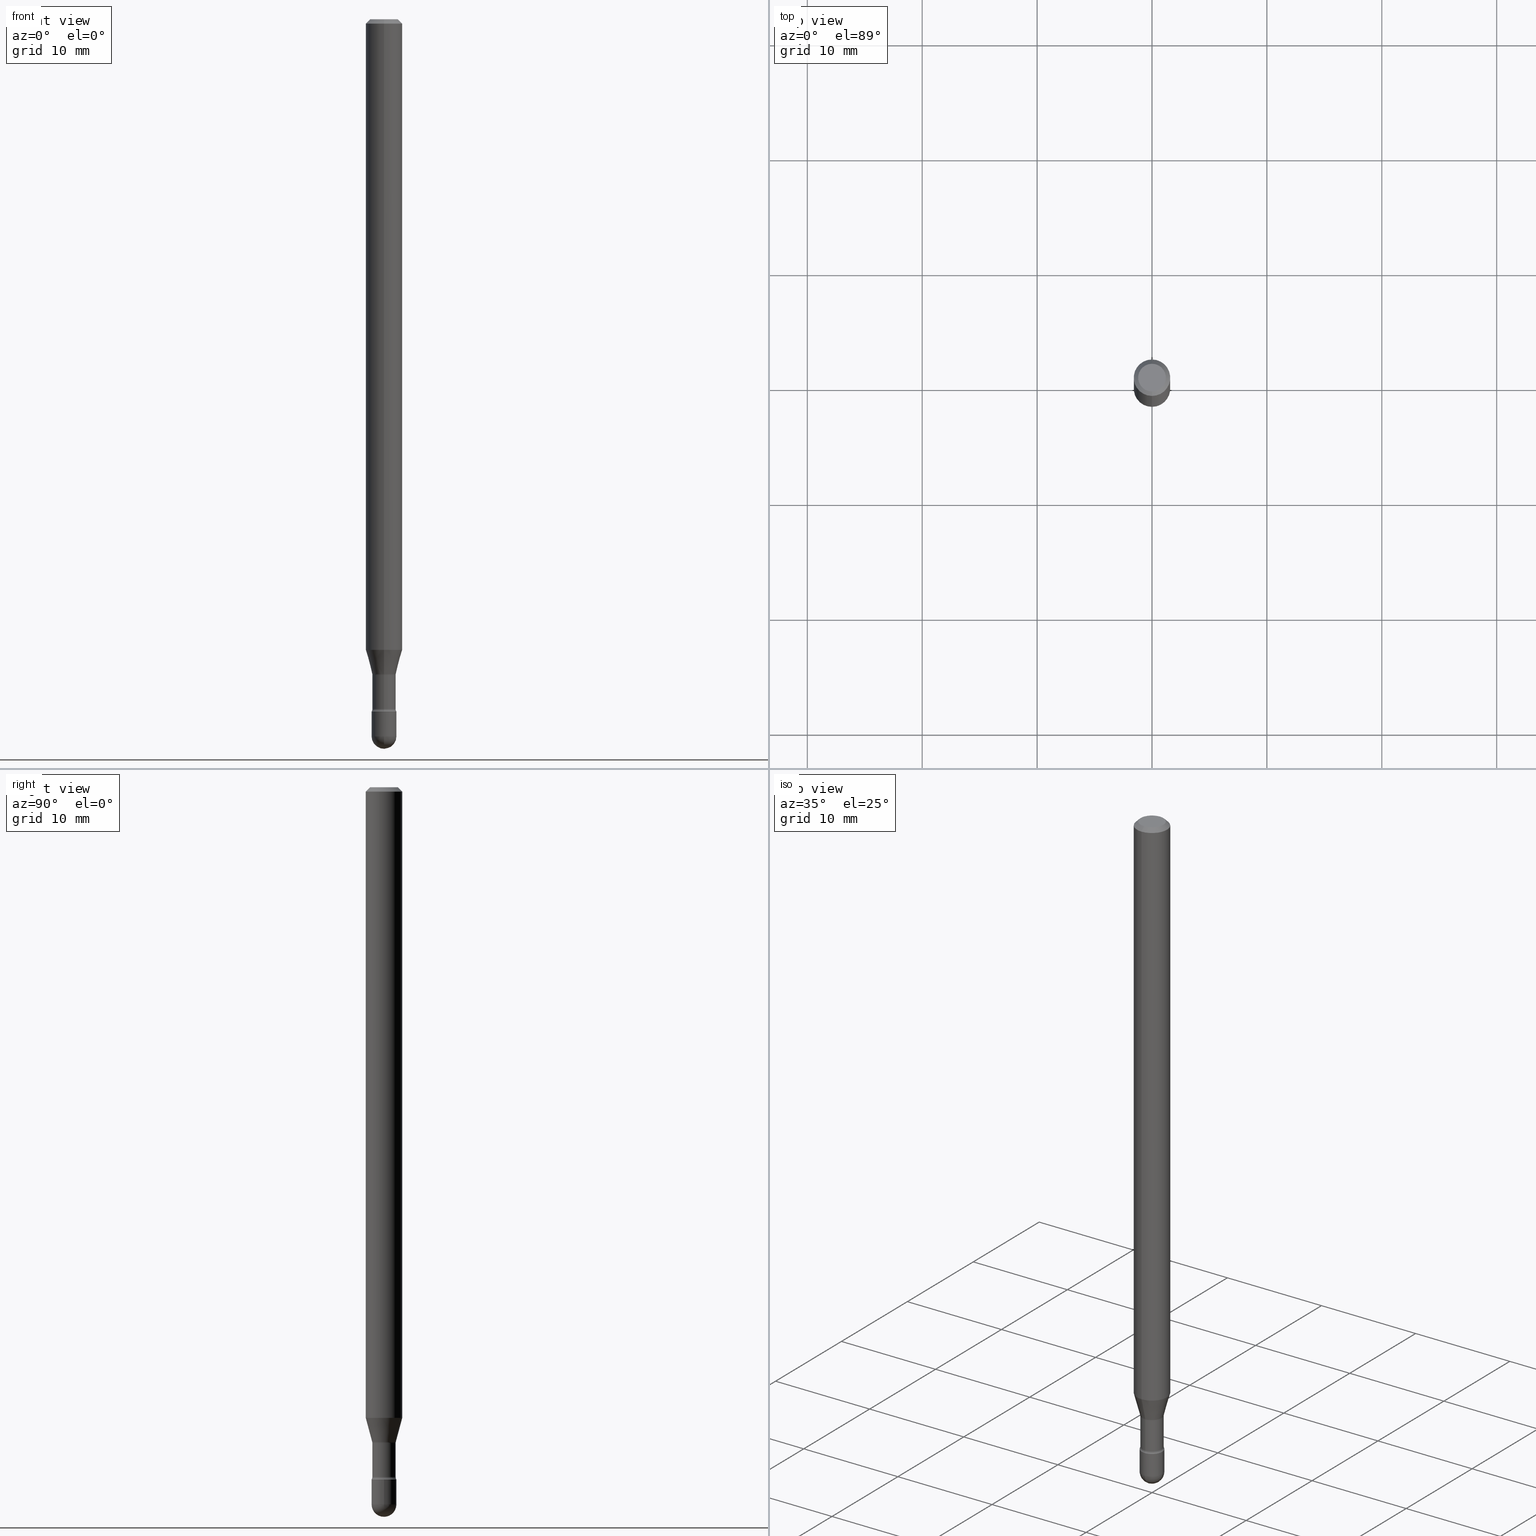
[diagram: canonical four-view strip — front | top / right | iso, engineering-drawing reading convention]
A machine part, canonical four-view strip (front | top / right | iso — engineering-drawing reading convention). The complete STEP part file that produces these views, byte-faithful:
ISO-10303-21;
HEADER;
FILE_DESCRIPTION (( 'STEP AP203' ),
    '1' );
FILE_NAME ('03824.STEP',
    '2024-04-09T20:37:17',
    ( '' ),
    ( '' ),
    'SwSTEP 2.0',
    'SolidWorks 2023',
    '' );
FILE_SCHEMA (( 'CONFIG_CONTROL_DESIGN' ));
ENDSEC;

DATA;
#1 = ORIENTED_EDGE ( 'NONE', *, *, #286, .F. ) ;
#2 = DIRECTION ( 'NONE',  ( -2.445507503827650270E-29, 3.491425921616532940E-15, 1.000000000000000000 ) ) ;
#3 = AXIS2_PLACEMENT_3D ( 'NONE', #433, #2, #337 ) ;
#4 = AXIS2_PLACEMENT_3D ( 'NONE', #171, #67, #457 ) ;
#5 = ORIENTED_EDGE ( 'NONE', *, *, #163, .T. ) ;
#6 = PRODUCT_RELATED_PRODUCT_CATEGORY ( 'detail', '', ( #428 ) ) ;
#7 = DATE_TIME_ROLE ( 'classification_date' ) ;
#8 = CARTESIAN_POINT ( 'NONE',  ( -4.364351673553916201E-16, -0.06250000000000000000, 6.962875189922793720E-16 ) ) ;
#9 = DIRECTION ( 'NONE',  ( -2.445507503827650270E-29, 3.491425921616532940E-15, 1.000000000000000000 ) ) ;
#10 = VERTEX_POINT ( 'NONE', #261 ) ;
#11 = APPROVAL_STATUS ( 'not_yet_approved' ) ;
#12 = LINE ( 'NONE', #175, #316 ) ;
#13 = ORIENTED_EDGE ( 'NONE', *, *, #65, .F. ) ;
#14 = DIRECTION ( 'NONE',  ( -2.445507503827650270E-29, 3.491425921616532940E-15, 1.000000000000000000 ) ) ;
#15 = AXIS2_PLACEMENT_3D ( 'NONE', #430, #225, #44 ) ;
#16 = CIRCLE ( 'NONE', #450, 0.04046111260566398471 ) ;
#17 = PERSON_AND_ORGANIZATION ( #242, #338 ) ;
#18 = FACE_OUTER_BOUND ( 'NONE', #432, .T. ) ;
#19 = APPROVAL_ROLE ( '' ) ;
#20 = UNCERTAINTY_MEASURE_WITH_UNIT (LENGTH_MEASURE( 1.000000000000000082E-05 ), #439, 'distance_accuracy_value', 'NONE');
#21 = ADVANCED_FACE ( 'NONE', ( #132 ), #179, .F. ) ;
#22 = APPROVAL_DATE_TIME ( #404, #149 ) ;
#23 = AXIS2_PLACEMENT_3D ( 'NONE', #93, #435, #499 ) ;
#24 = APPROVAL_PERSON_ORGANIZATION ( #342, #149, #131 ) ;
#25 = DIRECTION ( 'NONE',  ( 7.105427357601001859E-15, 1.000000000000000000, 0.000000000000000000 ) ) ;
#26 = CARTESIAN_POINT ( 'NONE',  ( -4.364351673553912750E-16, -0.06250000000000005551, -0.01499999999999986587 ) ) ;
#27 = DIRECTION ( 'NONE',  ( -6.982962677686266711E-15, -1.000000000000000000, 6.427877632151208176E-15 ) ) ;
#28 = EDGE_LOOP ( 'NONE', ( #295, #33, #244, #417 ) ) ;
#29 = CARTESIAN_POINT ( 'NONE',  ( 6.009739591199973545E-29, -8.580315390207031617E-15, -2.457500000000000018 ) ) ;
#30 = ORIENTED_EDGE ( 'NONE', *, *, #82, .T. ) ;
#31 = CIRCLE ( 'NONE', #455, 0.04046111260566398471 ) ;
#32 = VECTOR ( 'NONE', #9, 39.37007874015748143 ) ;
#33 = ORIENTED_EDGE ( 'NONE', *, *, #99, .T. ) ;
#34 = DIRECTION ( 'NONE',  ( -2.445507503827650270E-29, 3.491425921616532940E-15, 1.000000000000000000 ) ) ;
#35 = CYLINDRICAL_SURFACE ( 'NONE', #281, 0.04250000000000000999 ) ;
#36 = DIRECTION ( 'NONE',  ( -2.445507503827650270E-29, 3.491425921616532940E-15, 1.000000000000000000 ) ) ;
#37 = CARTESIAN_POINT ( 'NONE',  ( 3.668261255741495776E-31, -5.237138882424828228E-17, -0.01500000000000008271 ) ) ;
#38 = AXIS2_PLACEMENT_3D ( 'NONE', #267, #284, #279 ) ;
#39 = CIRCLE ( 'NONE', #349, 0.01499999999999998557 ) ;
#40 = LINE ( 'NONE', #391, #536 ) ;
#41 = EDGE_LOOP ( 'NONE', ( #467, #74, #155, #332 ) ) ;
#42 = CARTESIAN_POINT ( 'NONE',  ( 5.800652008271143730E-29, -8.281793735735941096E-15, -2.371999999999999886 ) ) ;
#43 = VERTEX_POINT ( 'NONE', #223 ) ;
#44 = DIRECTION ( 'NONE',  ( 6.982962677686265922E-15, 1.000000000000000000, -3.491425921616532940E-15 ) ) ;
#45 = CARTESIAN_POINT ( 'NONE',  ( 6.009739591199973545E-29, -8.580315390207031617E-15, -2.457500000000000018 ) ) ;
#46 = CC_DESIGN_DATE_AND_TIME_ASSIGNMENT ( #383, #7, ( #52 ) ) ;
#47 = ORIENTED_EDGE ( 'NONE', *, *, #319, .T. ) ;
#48 = DIRECTION ( 'NONE',  ( -2.445507503827649990E-29, 3.491425921616532940E-15, 1.000000000000000000 ) ) ;
#49 = LINE ( 'NONE', #8, #275 ) ;
#50 = CONICAL_SURFACE ( 'NONE', #520, 0.04046111260566398471, 0.2617993877991500740 ) ;
#51 = PRODUCT_DEFINITION_FORMATION_WITH_SPECIFIED_SOURCE ( 'ANY', '', #428, .NOT_KNOWN. ) ;
#52 = SECURITY_CLASSIFICATION ( '', '', #170 ) ;
#53 = ORIENTED_EDGE ( 'NONE', *, *, #99, .F. ) ;
#54 = DIRECTION ( 'NONE',  ( 1.000000000000000000, 0.000000000000000000, 0.000000000000000000 ) ) ;
#55 = ORIENTED_EDGE ( 'NONE', *, *, #451, .T. ) ;
#56 = PERSON_AND_ORGANIZATION ( #242, #338 ) ;
#57 = ORIENTED_EDGE ( 'NONE', *, *, #355, .T. ) ;
#58 = ADVANCED_FACE ( 'NONE', ( #445 ), #497, .F. ) ;
#59 = ORIENTED_EDGE ( 'NONE', *, *, #431, .F. ) ;
#60 = CIRCLE ( 'NONE', #112, 0.04249999999999999611 ) ;
#61 = PERSON_AND_ORGANIZATION_ROLE ( 'design_supplier' ) ;
#62 = PERSON_AND_ORGANIZATION ( #242, #338 ) ;
#63 = CARTESIAN_POINT ( 'NONE',  ( 2.023834255179844139E-45, -2.888878297537653118E-31, -8.274966438980944591E-17 ) ) ;
#64 = DIRECTION ( 'NONE',  ( -6.982962677686266711E-15, -1.000000000000000000, 3.491425921616533335E-15 ) ) ;
#65 = EDGE_CURVE ( 'NONE', #246, #521, #348, .T. ) ;
#66 = AXIS2_PLACEMENT_3D ( 'NONE', #526, #208, #135 ) ;
#67 = DIRECTION ( 'NONE',  ( -2.445507503827650270E-29, 3.491425921616532940E-15, 1.000000000000000000 ) ) ;
#68 = CIRCLE ( 'NONE', #168, 0.04249999999999999611 ) ;
#69 = APPROVAL_PERSON_ORGANIZATION ( #62, #545, #350 ) ;
#70 = DIRECTION ( 'NONE',  ( 1.000000000000000000, -6.982962677686273810E-15, 0.000000000000000000 ) ) ;
#71 = DIMENSIONAL_EXPONENTS ( 1.000000000000000000, 0.000000000000000000, 0.000000000000000000, 0.000000000000000000, 0.000000000000000000, 0.000000000000000000, 0.000000000000000000 ) ;
#72 = DIRECTION ( 'NONE',  ( -2.445468806185136597E-29, 3.491481338843145583E-15, 1.000000000000000000 ) ) ;
#73 = CARTESIAN_POINT ( 'NONE',  ( 5.494906751027227504E-29, -7.845270539280941136E-15, -2.246974787463811296 ) ) ;
#74 = ORIENTED_EDGE ( 'NONE', *, *, #388, .F. ) ;
#75 = FACE_OUTER_BOUND ( 'NONE', #344, .T. ) ;
#76 = CIRCLE ( 'NONE', #456, 0.01499999999999998557 ) ;
#77 = AXIS2_PLACEMENT_3D ( 'NONE', #535, #447, #54 ) ;
#78 = EDGE_CURVE ( 'NONE', #246, #301, #125, .T. ) ;
#79 = EDGE_CURVE ( 'NONE', #347, #360, #166, .T. ) ;
#80 = CARTESIAN_POINT ( 'NONE',  ( -1.169113584055446105E-44, 1.669184350826100908E-30, 4.780733988912460139E-16 ) ) ;
#81 = ORIENTED_EDGE ( 'NONE', *, *, #283, .T. ) ;
#82 = EDGE_CURVE ( 'NONE', #566, #347, #31, .T. ) ;
#83 = ORIENTED_EDGE ( 'NONE', *, *, #78, .F. ) ;
#84 = DIRECTION ( 'NONE',  ( 2.445507503827650270E-29, -3.491425921616532940E-15, -1.000000000000000000 ) ) ;
#85 = ORIENTED_EDGE ( 'NONE', *, *, #211, .T. ) ;
#86 = DIRECTION ( 'NONE',  ( -2.445507503827650270E-29, 3.491425921616532940E-15, 1.000000000000000000 ) ) ;
#87 = CONICAL_SURFACE ( 'NONE', #23, 0.06250000000000000000, 0.7853981633974483900 ) ;
#88 = CYLINDRICAL_SURFACE ( 'NONE', #548, 0.03995000000000002716 ) ;
#89 = ORIENTED_EDGE ( 'NONE', *, *, #351, .F. ) ;
#90 = CARTESIAN_POINT ( 'NONE',  ( 5.780283580719598102E-29, -8.252451442668377190E-15, -2.363633549139569467 ) ) ;
#91 = VERTEX_POINT ( 'NONE', #129 ) ;
#92 = DIRECTION ( 'NONE',  ( -6.982962677686265922E-15, -1.000000000000000000, 3.483106191921935554E-15 ) ) ;
#93 = CARTESIAN_POINT ( 'NONE',  ( 3.668261255741495776E-31, -5.237138882424828228E-17, -0.01500000000000008271 ) ) ;
#94 = EDGE_LOOP ( 'NONE', ( #487, #217, #196, #415 ) ) ;
#95 =( LENGTH_UNIT ( ) NAMED_UNIT ( * ) SI_UNIT ( $, .METRE. ) );
#96 = CARTESIAN_POINT ( 'NONE',  ( 6.009739591199973545E-29, -8.580315390207031617E-15, -2.457500000000000018 ) ) ;
#97 = AXIS2_PLACEMENT_3D ( 'NONE', #80, #159, #512 ) ;
#98 = CIRCLE ( 'NONE', #471, 0.04749999999999999362 ) ;
#99 = EDGE_CURVE ( 'NONE', #212, #114, #144, .T. ) ;
#100 = ORIENTED_EDGE ( 'NONE', *, *, #543, .T. ) ;
#101 =( NAMED_UNIT ( * ) SI_UNIT ( $, .STERADIAN. ) SOLID_ANGLE_UNIT ( ) );
#102 = CARTESIAN_POINT ( 'NONE',  ( 2.929212428171592177E-16, 0.03994999999999178375, -2.363633549139569912 ) ) ;
#103 = ORIENTED_EDGE ( 'NONE', *, *, #65, .T. ) ;
#104 = COORDINATED_UNIVERSAL_TIME_OFFSET ( 5, 0, .BEHIND. ) ;
#105 = CARTESIAN_POINT ( 'NONE',  ( -0.04250000000000000999, 3.019806626980426500E-16, -2.090547413358335560E-30 ) ) ;
#106 = APPROVAL_DATE_TIME ( #444, #545 ) ;
#107 = AXIS2_PLACEMENT_3D ( 'NONE', #496, #546, #25 ) ;
#108 = CC_DESIGN_APPROVAL ( #545, ( #51 ) ) ;
#109 = CARTESIAN_POINT ( 'NONE',  ( 3.904432333002330252E-16, 0.05494999999999177626, -2.363633549139569912 ) ) ;
#110 = CARTESIAN_POINT ( 'NONE',  ( 6.009739591199973545E-29, -8.580315390207031617E-15, -2.457500000000000018 ) ) ;
#111 = CARTESIAN_POINT ( 'NONE',  ( 2.874934964273144105E-16, 0.04046111260565615764, -2.243092501787273818 ) ) ;
#112 = AXIS2_PLACEMENT_3D ( 'NONE', #277, #245, #27 ) ;
#113 = CIRCLE ( 'NONE', #560, 0.04250000000000000999 ) ;
#114 = VERTEX_POINT ( 'NONE', #141 ) ;
#115 = FACE_OUTER_BOUND ( 'NONE', #441, .T. ) ;
#116 = AXIS2_PLACEMENT_3D ( 'NONE', #162, #287, #515 ) ;
#117 = LINE ( 'NONE', #243, #470 ) ;
#118 = EDGE_LOOP ( 'NONE', ( #199, #30, #477, #305 ) ) ;
#119 = FACE_OUTER_BOUND ( 'NONE', #157, .T. ) ;
#120 = VERTEX_POINT ( 'NONE', #475 ) ;
#121 = DIRECTION ( 'NONE',  ( 1.000000000000000000, -6.982962677686266711E-15, 4.876176775795935793E-29 ) ) ;
#122 = VERTEX_POINT ( 'NONE', #220 ) ;
#123 = ADVANCED_FACE ( 'NONE', ( #389 ), #202, .F. ) ;
#124 = CARTESIAN_POINT ( 'NONE',  ( -3.837137991388027519E-16, -0.05495000000000829082, -2.363633549139569023 ) ) ;
#125 = LINE ( 'NONE', #105, #333 ) ;
#126 = TOROIDAL_SURFACE ( 'NONE', #449, 0.05495000000000003354, 0.01499999999999998904 ) ;
#127 = AXIS2_PLACEMENT_3D ( 'NONE', #37, #429, #336 ) ;
#128 = ORIENTED_EDGE ( 'NONE', *, *, #190, .F. ) ;
#129 = CARTESIAN_POINT ( 'NONE',  ( 3.019806626981003848E-16, 0.04249999999999170414, -2.372000000000000330 ) ) ;
#130 = ORIENTED_EDGE ( 'NONE', *, *, #259, .F. ) ;
#131 = APPROVAL_ROLE ( '' ) ;
#132 = FACE_OUTER_BOUND ( 'NONE', #206, .T. ) ;
#133 = VERTEX_POINT ( 'NONE', #523 ) ;
#134 = APPLICATION_PROTOCOL_DEFINITION ( 'international standard', 'config_control_design', 1994, #465 ) ;
#135 = DIRECTION ( 'NONE',  ( 1.000000000000000000, -6.982962677686273810E-15, 0.000000000000000000 ) ) ;
#136 = CIRCLE ( 'NONE', #107, 0.01500000000000001853 ) ;
#137 = EDGE_CURVE ( 'NONE', #516, #364, #530, .T. ) ;
#138 = LOCAL_TIME ( 16, 37, 17.00000000000000000, #104 ) ;
#139 = DIRECTION ( 'NONE',  ( -2.445468806185136597E-29, 3.491481338843145583E-15, 1.000000000000000000 ) ) ;
#140 = ORIENTED_EDGE ( 'NONE', *, *, #454, .F. ) ;
#141 = CARTESIAN_POINT ( 'NONE',  ( 2.967759138017263083E-16, 0.04249999999999140576, -2.457500000000000462 ) ) ;
#142 = PERSON_AND_ORGANIZATION_ROLE ( 'creator' ) ;
#143 = CC_DESIGN_PERSON_AND_ORGANIZATION_ASSIGNMENT ( #482, #534, ( #51 ) ) ;
#144 = CIRCLE ( 'NONE', #237, 0.04249999999999994754 ) ;
#145 = AXIS2_PLACEMENT_3D ( 'NONE', #73, #551, #320 ) ;
#146 = CC_DESIGN_APPROVAL ( #233, ( #409 ) ) ;
#147 = DIRECTION ( 'NONE',  ( -6.982962677686267499E-15, -1.000000000000000000, 0.000000000000000000 ) ) ;
#148 = CARTESIAN_POINT ( 'NONE',  ( 6.009739591199973545E-29, -8.580315390207031617E-15, -2.457500000000000018 ) ) ;
#149 = APPROVAL ( #525, 'UNSPECIFIED' ) ;
#150 = CIRCLE ( 'NONE', #262, 0.03995000000000004103 ) ;
#151 = DIRECTION ( 'NONE',  ( -6.982962677686265922E-15, -1.000000000000000000, 3.491425921616532940E-15 ) ) ;
#152 = ORIENTED_EDGE ( 'NONE', *, *, #211, .F. ) ;
#153 = CARTESIAN_POINT ( 'NONE',  ( 5.494993703654290512E-29, -7.845146018169950789E-15, -2.246974787463811296 ) ) ;
#154 = DIRECTION ( 'NONE',  ( -6.982962677686266711E-15, -1.000000000000000000, 3.491425921616533335E-15 ) ) ;
#155 = ORIENTED_EDGE ( 'NONE', *, *, #259, .T. ) ;
#156 = DIRECTION ( 'NONE',  ( 4.937700262164548042E-15, 0.7071067811865451302, -0.7071067811865499042 ) ) ;
#157 = EDGE_LOOP ( 'NONE', ( #221, #436, #100, #278 ) ) ;
#158 = CARTESIAN_POINT ( 'NONE',  ( 3.657913531387149155E-16, 0.04046111260565615764, -2.243092501787273818 ) ) ;
#159 = DIRECTION ( 'NONE',  ( -2.445507503827650270E-29, 3.491425921616532940E-15, 1.000000000000000000 ) ) ;
#160 = ORIENTED_EDGE ( 'NONE', *, *, #402, .F. ) ;
#161 = VECTOR ( 'NONE', #500, 39.37007874015748854 ) ;
#162 = CARTESIAN_POINT ( 'NONE',  ( 5.800652008271143730E-29, -8.281793735735941096E-15, -2.371999999999999886 ) ) ;
#163 = EDGE_CURVE ( 'NONE', #10, #364, #12, .T. ) ;
#164 = VERTEX_POINT ( 'NONE', #102 ) ;
#165 = ORIENTED_EDGE ( 'NONE', *, *, #469, .F. ) ;
#166 = LINE ( 'NONE', #293, #558 ) ;
#167 = FACE_OUTER_BOUND ( 'NONE', #473, .T. ) ;
#168 = AXIS2_PLACEMENT_3D ( 'NONE', #42, #205, #463 ) ;
#169 = EDGE_LOOP ( 'NONE', ( #468, #47, #128, #59 ) ) ;
#170 = SECURITY_CLASSIFICATION_LEVEL ( 'unclassified' ) ;
#171 = CARTESIAN_POINT ( 'NONE',  ( 5.284355947452393221E-29, -7.544420659150042913E-15, -2.160842254289322195 ) ) ;
#172 = EDGE_CURVE ( 'NONE', #360, #364, #49, .T. ) ;
#173 = ORIENTED_EDGE ( 'NONE', *, *, #542, .F. ) ;
#174 = CALENDAR_DATE ( 2024, 9, 4 ) ;
#175 = CARTESIAN_POINT ( 'NONE',  ( -4.287811248607203282E-16, -0.06250000000000005551, -0.01499999999999986587 ) ) ;
#176 = DIRECTION ( 'NONE',  ( -2.445468806185136597E-29, 3.491481338843145583E-15, 1.000000000000000000 ) ) ;
#177 = ADVANCED_FACE ( 'NONE', ( #346 ), #270, .T. ) ;
#178 = EDGE_LOOP ( 'NONE', ( #165, #341, #285, #331 ) ) ;
#179 = PLANE ( 'NONE',  #15 ) ;
#180 = CIRCLE ( 'NONE', #505, 0.04249999999999999611 ) ;
#181 = PERSON_AND_ORGANIZATION_ROLE ( 'design_owner' ) ;
#182 = DIRECTION ( 'NONE',  ( -6.982962677686265133E-15, -1.000000000000000000, 3.491425921616533729E-15 ) ) ;
#183 = EDGE_CURVE ( 'NONE', #91, #268, #60, .T. ) ;
#184 = CALENDAR_DATE ( 2024, 9, 4 ) ;
#185 = CARTESIAN_POINT ( 'NONE',  ( -3.837137991388053650E-16, -0.05495000000000784673, -2.246974787463810852 ) ) ;
#186 = SHAPE_DEFINITION_REPRESENTATION ( #253, #280 ) ;
#187 = AXIS2_PLACEMENT_3D ( 'NONE', #153, #321, #509 ) ;
#188 = CIRCLE ( 'NONE', #127, 0.06250000000000000000 ) ;
#189 = ADVANCED_FACE ( 'NONE', ( #507 ), #552, .T. ) ;
#190 = EDGE_CURVE ( 'NONE', #122, #133, #226, .T. ) ;
#191 = CARTESIAN_POINT ( 'NONE',  ( -1.169113584055446105E-44, 1.669184350826100908E-30, 4.780733988912460139E-16 ) ) ;
#192 = EDGE_LOOP ( 'NONE', ( #420, #85, #387, #1 ) ) ;
#193 = CIRCLE ( 'NONE', #116, 0.04249999999999999611 ) ;
#194 = CARTESIAN_POINT ( 'NONE',  ( 5.780192113673480765E-29, -8.252582428684399354E-15, -2.363633549139569467 ) ) ;
#195 = AXIS2_PLACEMENT_3D ( 'NONE', #207, #256, #554 ) ;
#196 = ORIENTED_EDGE ( 'NONE', *, *, #442, .F. ) ;
#197 = DIRECTION ( 'NONE',  ( -6.982962677686265922E-15, -1.000000000000000000, 6.751786635945950546E-15 ) ) ;
#198 = DIRECTION ( 'NONE',  ( -6.982962677686265922E-15, -1.000000000000000000, 3.491425921616532546E-15 ) ) ;
#199 = ORIENTED_EDGE ( 'NONE', *, *, #460, .F. ) ;
#200 = FACE_OUTER_BOUND ( 'NONE', #169, .T. ) ;
#201 = ORIENTED_EDGE ( 'NONE', *, *, #527, .T. ) ;
#202 = TOROIDAL_SURFACE ( 'NONE', #3, 0.05495000000000003354, 0.01499999999999998904 ) ;
#203 = CIRCLE ( 'NONE', #532, 0.03995000000000004103 ) ;
#204 = ORIENTED_EDGE ( 'NONE', *, *, #543, .F. ) ;
#205 = DIRECTION ( 'NONE',  ( -2.445468806185136597E-29, 3.491481338843145583E-15, 1.000000000000000000 ) ) ;
#206 = EDGE_LOOP ( 'NONE', ( #367, #265 ) ) ;
#207 = CARTESIAN_POINT ( 'NONE',  ( 5.284355947452393221E-29, -7.544420659150042913E-15, -2.160842254289322195 ) ) ;
#208 = DIRECTION ( 'NONE',  ( -2.445468806185136597E-29, 3.491481338843145583E-15, 1.000000000000000000 ) ) ;
#209 = DIRECTION ( 'NONE',  ( -7.105427357601001070E-15, -1.000000000000000000, 0.000000000000000000 ) ) ;
#210 = DIRECTION ( 'NONE',  ( -1.000000000000000000, 6.982962677686265922E-15, -4.883557194083112340E-29 ) ) ;
#211 = EDGE_CURVE ( 'NONE', #164, #247, #150, .T. ) ;
#212 = VERTEX_POINT ( 'NONE', #410 ) ;
#213 = DIRECTION ( 'NONE',  ( -2.445507503827650270E-29, 3.491425921616532940E-15, 1.000000000000000000 ) ) ;
#214 = AXIS2_PLACEMENT_3D ( 'NONE', #29, #229, #353 ) ;
#215 = AXIS2_PLACEMENT_3D ( 'NONE', #228, #176, #399 ) ;
#216 = CC_DESIGN_APPROVAL ( #149, ( #52 ) ) ;
#217 = ORIENTED_EDGE ( 'NONE', *, *, #460, .T. ) ;
#218 = ADVANCED_FACE ( 'NONE', ( #200 ), #372, .T. ) ;
#219 = MECHANICAL_CONTEXT ( 'NONE', #434, 'mechanical' ) ;
#220 = CARTESIAN_POINT ( 'NONE',  ( -2.789693589735114038E-16, -0.03995000000000785423, -2.246974787463810852 ) ) ;
#221 = ORIENTED_EDGE ( 'NONE', *, *, #466, .F. ) ;
#222 = COORDINATED_UNIVERSAL_TIME_OFFSET ( 5, 0, .BEHIND. ) ;
#223 = CARTESIAN_POINT ( 'NONE',  ( 0.04249999999999999611, -8.578569649537607747E-15, -2.371999999999999886 ) ) ;
#224 = PERSON_AND_ORGANIZATION ( #242, #338 ) ;
#225 = DIRECTION ( 'NONE',  ( 2.445507503827649990E-29, -3.491425921616532940E-15, -1.000000000000000000 ) ) ;
#226 = CIRCLE ( 'NONE', #397, 0.03995000000000000634 ) ;
#227 = PERSON_AND_ORGANIZATION_ROLE ( 'classification_officer' ) ;
#228 = CARTESIAN_POINT ( 'NONE',  ( 0.000000000000000000, 0.000000000000000000, 0.000000000000000000 ) ) ;
#229 = DIRECTION ( 'NONE',  ( -2.445468806185136597E-29, 3.491481338843145583E-15, 1.000000000000000000 ) ) ;
#230 = SPHERICAL_SURFACE ( 'NONE', #327, 0.04249999999999994754 ) ;
#231 = CIRCLE ( 'NONE', #362, 0.04749999999999999362 ) ;
#232 = LINE ( 'NONE', #314, #239 ) ;
#233 = APPROVAL ( #11, 'UNSPECIFIED' ) ;
#234 = DIRECTION ( 'NONE',  ( -1.000000000000000000, 6.982962677686265922E-15, -4.883557194083112340E-29 ) ) ;
#235 = ORIENTED_EDGE ( 'NONE', *, *, #454, .T. ) ;
#236 = DIRECTION ( 'NONE',  ( 6.982962677686265922E-15, 1.000000000000000000, -6.427877632151215276E-15 ) ) ;
#237 = AXIS2_PLACEMENT_3D ( 'NONE', #96, #488, #440 ) ;
#238 = MANIFOLD_SOLID_BREP ( 'Body-Move/Copy2[2]', #370 ) ;
#239 = VECTOR ( 'NONE', #503, 39.37007874015748143 ) ;
#240 = EDGE_LOOP ( 'NONE', ( #83, #103, #481, #255, #553 ) ) ;
#241 = CYLINDRICAL_SURFACE ( 'NONE', #422, 0.06250000000000000000 ) ;
#242 = PERSON ( 'UNSPECIFIED', 'UNSPECIFIED', 'UNSPECIFIED', ('UNSPECIFIED'), ('UNSPECIFIED'), ('UNSPECIFIED') ) ;
#243 = CARTESIAN_POINT ( 'NONE',  ( 4.364351673553919652E-16, 0.06249999999999995143, -0.01500000000000030129 ) ) ;
#244 = ORIENTED_EDGE ( 'NONE', *, *, #451, .F. ) ;
#245 = DIRECTION ( 'NONE',  ( -2.445507503827650270E-29, 3.491425921616532940E-15, 1.000000000000000000 ) ) ;
#246 = VERTEX_POINT ( 'NONE', #461 ) ;
#247 = VERTEX_POINT ( 'NONE', #328 ) ;
#248 = AXIS2_PLACEMENT_3D ( 'NONE', #522, #86, #249 ) ;
#249 = DIRECTION ( 'NONE',  ( -6.982962677686265922E-15, -1.000000000000000000, 6.751786635945950546E-15 ) ) ;
#250 = CARTESIAN_POINT ( 'NONE',  ( 5.800743799079186318E-29, -8.281662286074416068E-15, -2.371999999999999886 ) ) ;
#251 = EDGE_LOOP ( 'NONE', ( #81, #550 ) ) ;
#252 = SPHERICAL_SURFACE ( 'NONE', #371, 0.04249999999999994754 ) ;
#253 = PRODUCT_DEFINITION_SHAPE ( 'NONE', 'NONE',  #409 ) ;
#254 = DIRECTION ( 'NONE',  ( -2.445507503827650270E-29, 3.491425921616532940E-15, 1.000000000000000000 ) ) ;
#255 = ORIENTED_EDGE ( 'NONE', *, *, #351, .T. ) ;
#256 = DIRECTION ( 'NONE',  ( -2.445507503827650270E-29, 3.491425921616532940E-15, 1.000000000000000000 ) ) ;
#257 = DIRECTION ( 'NONE',  ( -4.851104656540964275E-15, -0.7071067811865500152, -0.7071067811865450192 ) ) ;
#258 = DIRECTION ( 'NONE',  ( -6.982962677686265133E-15, -1.000000000000000000, 6.838167693777873083E-15 ) ) ;
#259 = EDGE_CURVE ( 'NONE', #408, #516, #117, .T. ) ;
#260 = ORIENTED_EDGE ( 'NONE', *, *, #513, .T. ) ;
#261 = CARTESIAN_POINT ( 'NONE',  ( -3.773273898774340269E-16, -0.04749999999999999362, 8.309306688697584557E-17 ) ) ;
#262 = AXIS2_PLACEMENT_3D ( 'NONE', #365, #36, #556 ) ;
#263 = VECTOR ( 'NONE', #307, 39.37007874015748143 ) ;
#264 = PLANE ( 'NONE',  #276 ) ;
#265 = ORIENTED_EDGE ( 'NONE', *, *, #485, .T. ) ;
#266 = LENGTH_MEASURE_WITH_UNIT ( LENGTH_MEASURE( 0.02539999999999999897 ), #95 );
#267 = CARTESIAN_POINT ( 'NONE',  ( 5.800652008271143730E-29, -8.281793735735941096E-15, -2.371999999999999886 ) ) ;
#268 = VERTEX_POINT ( 'NONE', #549 ) ;
#269 = CALENDAR_DATE ( 2024, 9, 4 ) ;
#270 = PLANE ( 'NONE',  #38 ) ;
#271 = DIRECTION ( 'NONE',  ( 1.000000000000000000, -7.105427357601001070E-15, 4.926314829876790418E-29 ) ) ;
#272 = ADVANCED_FACE ( 'NONE', ( #119 ), #126, .F. ) ;
#273 = CARTESIAN_POINT ( 'NONE',  ( 5.485499544900314187E-29, -7.831591305323763980E-15, -2.243092501787273374 ) ) ;
#274 = CARTESIAN_POINT ( 'NONE',  ( 0.04250000000000000999, -8.727830476773152219E-15, -2.457500000000000018 ) ) ;
#275 = VECTOR ( 'NONE', #14, 39.37007874015748143 ) ;
#276 = AXIS2_PLACEMENT_3D ( 'NONE', #390, #48, #557 ) ;
#277 = CARTESIAN_POINT ( 'NONE',  ( 5.800743799079186318E-29, -8.281662286074416068E-15, -2.371999999999999886 ) ) ;
#278 = ORIENTED_EDGE ( 'NONE', *, *, #402, .T. ) ;
#279 = DIRECTION ( 'NONE',  ( 1.000000000000000000, -6.982962677686265922E-15, 4.876176775795935793E-29 ) ) ;
#280 = ADVANCED_BREP_SHAPE_REPRESENTATION ( '03824', ( #412, #238, #77 ), #291 ) ;
#281 = AXIS2_PLACEMENT_3D ( 'NONE', #517, #139, #121 ) ;
#282 = AXIS2_PLACEMENT_3D ( 'NONE', #185, #501, #147 ) ;
#283 = EDGE_CURVE ( 'NONE', #43, #301, #193, .T. ) ;
#284 = DIRECTION ( 'NONE',  ( -2.438088387897960049E-29, 3.491481338843145188E-15, 1.000000000000000000 ) ) ;
#285 = ORIENTED_EDGE ( 'NONE', *, *, #172, .T. ) ;
#286 = EDGE_CURVE ( 'NONE', #133, #122, #464, .T. ) ;
#287 = DIRECTION ( 'NONE',  ( -2.445468806185136597E-29, 3.491481338843145583E-15, 1.000000000000000000 ) ) ;
#288 = ORIENTED_EDGE ( 'NONE', *, *, #172, .F. ) ;
#289 = FACE_OUTER_BOUND ( 'NONE', #192, .T. ) ;
#290 = ORIENTED_EDGE ( 'NONE', *, *, #190, .T. ) ;
#291 =( GEOMETRIC_REPRESENTATION_CONTEXT ( 3 ) GLOBAL_UNCERTAINTY_ASSIGNED_CONTEXT ( ( #20 ) ) GLOBAL_UNIT_ASSIGNED_CONTEXT ( ( #439, #529, #101 ) ) REPRESENTATION_CONTEXT ( 'NONE', 'WORKASPACE' ) );
#292 = DIRECTION ( 'NONE',  ( -1.000000000000000000, 6.982962677686265922E-15, -4.883557194083112340E-29 ) ) ;
#293 = CARTESIAN_POINT ( 'NONE',  ( -2.825384392229580916E-16, -0.04046111260567181178, -2.243092501787272930 ) ) ;
#294 = ADVANCED_FACE ( 'NONE', ( #115 ), #35, .T. ) ;
#295 = ORIENTED_EDGE ( 'NONE', *, *, #401, .F. ) ;
#296 = FACE_OUTER_BOUND ( 'NONE', #427, .T. ) ;
#297 = CC_DESIGN_PERSON_AND_ORGANIZATION_ASSIGNMENT ( #56, #227, ( #52 ) ) ;
#298 = ORIENTED_EDGE ( 'NONE', *, *, #286, .T. ) ;
#299 = DATE_AND_TIME ( #184, #533 ) ;
#300 = CARTESIAN_POINT ( 'NONE',  ( 5.494906751027227504E-29, -7.845270539280941136E-15, -2.246974787463811296 ) ) ;
#301 = VERTEX_POINT ( 'NONE', #486 ) ;
#302 = PERSON_AND_ORGANIZATION ( #242, #338 ) ;
#303 = DIRECTION ( 'NONE',  ( -1.807323732225328562E-15, -0.2588190451025179639, 0.9659258262890690894 ) ) ;
#304 = AXIS2_PLACEMENT_3D ( 'NONE', #421, #375, #209 ) ;
#305 = ORIENTED_EDGE ( 'NONE', *, *, #559, .F. ) ;
#306 = COORDINATED_UNIVERSAL_TIME_OFFSET ( 5, 0, .BEHIND. ) ;
#307 = DIRECTION ( 'NONE',  ( -2.445468806185136877E-29, 3.491481338843145188E-15, 1.000000000000000000 ) ) ;
#308 = COORDINATED_UNIVERSAL_TIME_OFFSET ( 5, 0, .BEHIND. ) ;
#309 = DATE_AND_TIME ( #174, #373 ) ;
#310 = CIRCLE ( 'NONE', #214, 0.04250000000000000999 ) ;
#311 = DIRECTION ( 'NONE',  ( 7.105427357601001859E-15, 1.000000000000000000, 0.000000000000000000 ) ) ;
#312 = DESIGN_CONTEXT ( 'detailed design', #465, 'design' ) ;
#313 = CARTESIAN_POINT ( 'NONE',  ( -4.364351673553386185E-16, -0.06250000000000750788, -2.160842254289322195 ) ) ;
#314 = CARTESIAN_POINT ( 'NONE',  ( 4.440892098500625669E-16, 0.06250000000000000000, 2.598592787902127545E-16 ) ) ;
#315 = FACE_OUTER_BOUND ( 'NONE', #28, .T. ) ;
#316 = VECTOR ( 'NONE', #257, 39.37007874015748143 ) ;
#317 = CIRCLE ( 'NONE', #195, 0.06250000000000000000 ) ;
#318 = DIRECTION ( 'NONE',  ( -2.445507503827650270E-29, 3.491425921616532940E-15, 1.000000000000000000 ) ) ;
#319 = EDGE_CURVE ( 'NONE', #164, #133, #40, .T. ) ;
#320 = DIRECTION ( 'NONE',  ( -6.982962677686265922E-15, -1.000000000000000000, 3.491425921616532940E-15 ) ) ;
#321 = DIRECTION ( 'NONE',  ( -2.445507503827650270E-29, 3.491425921616532940E-15, 1.000000000000000000 ) ) ;
#322 = EDGE_LOOP ( 'NONE', ( #140, #173, #57, #290 ) ) ;
#323 = CARTESIAN_POINT ( 'NONE',  ( 5.485499544900314187E-29, -7.831591305323763980E-15, -2.243092501787273374 ) ) ;
#324 = CARTESIAN_POINT ( 'NONE',  ( 3.840629472727447874E-16, 0.04749999999999999362, -2.485923956665947374E-16 ) ) ;
#325 = ADVANCED_FACE ( 'NONE', ( #289 ), #88, .T. ) ;
#326 = AXIS2_PLACEMENT_3D ( 'NONE', #394, #478, #92 ) ;
#327 = AXIS2_PLACEMENT_3D ( 'NONE', #110, #234, #236 ) ;
#328 = CARTESIAN_POINT ( 'NONE',  ( -2.789693589735087907E-16, -0.03995000000000829832, -2.363633549139569023 ) ) ;
#329 = ADVANCED_FACE ( 'NONE', ( #18 ), #405, .F. ) ;
#330 = DIRECTION ( 'NONE',  ( -6.982962677686265133E-15, -1.000000000000000000, 6.838167693777879394E-15 ) ) ;
#331 = ORIENTED_EDGE ( 'NONE', *, *, #137, .F. ) ;
#332 = ORIENTED_EDGE ( 'NONE', *, *, #137, .T. ) ;
#333 = VECTOR ( 'NONE', #483, 39.37007874015748143 ) ;
#334 = ADVANCED_FACE ( 'NONE', ( #358 ), #540, .T. ) ;
#335 = CIRCLE ( 'NONE', #282, 0.01500000000000001853 ) ;
#336 = DIRECTION ( 'NONE',  ( -6.982962677686265922E-15, -1.000000000000000000, 3.483106191921935554E-15 ) ) ;
#337 = DIRECTION ( 'NONE',  ( -6.982962677686265922E-15, -1.000000000000000000, 3.491425921616532940E-15 ) ) ;
#338 = ORGANIZATION ( 'UNSPECIFIED', 'UNSPECIFIED', '' ) ;
#339 = CARTESIAN_POINT ( 'NONE',  ( 0.04250000000000000999, -2.967759138016664042E-16, 2.072375129713273202E-30 ) ) ;
#340 = DIRECTION ( 'NONE',  ( -2.445507503827650270E-29, 3.491425921616532940E-15, 1.000000000000000000 ) ) ;
#341 = ORIENTED_EDGE ( 'NONE', *, *, #559, .T. ) ;
#342 = PERSON_AND_ORGANIZATION ( #242, #338 ) ;
#343 = CARTESIAN_POINT ( 'NONE',  ( 5.485499544900314187E-29, -7.831591305323763980E-15, -2.243092501787273374 ) ) ;
#344 = EDGE_LOOP ( 'NONE', ( #547, #376, #446, #288 ) ) ;
#345 = APPLICATION_PROTOCOL_DEFINITION ( 'international standard', 'config_control_design', 1994, #434 ) ;
#346 = FACE_OUTER_BOUND ( 'NONE', #251, .T. ) ;
#347 = VERTEX_POINT ( 'NONE', #564 ) ;
#348 = CIRCLE ( 'NONE', #66, 0.04250000000000000999 ) ;
#349 = AXIS2_PLACEMENT_3D ( 'NONE', #124, #292, #474 ) ;
#350 = APPROVAL_ROLE ( '' ) ;
#351 = EDGE_CURVE ( 'NONE', #462, #43, #400, .T. ) ;
#352 = CALENDAR_DATE ( 2024, 9, 4 ) ;
#353 = DIRECTION ( 'NONE',  ( 1.000000000000000000, -6.982962677686273810E-15, 0.000000000000000000 ) ) ;
#354 = ADVANCED_FACE ( 'NONE', ( #296 ), #87, .T. ) ;
#355 = EDGE_CURVE ( 'NONE', #347, #122, #335, .T. ) ;
#356 = AXIS2_PLACEMENT_3D ( 'NONE', #300, #491, #519 ) ;
#357 = AXIS2_PLACEMENT_3D ( 'NONE', #452, #359, #70 ) ;
#358 = FACE_OUTER_BOUND ( 'NONE', #41, .T. ) ;
#359 = DIRECTION ( 'NONE',  ( -2.445468806185136597E-29, 3.491481338843145583E-15, 1.000000000000000000 ) ) ;
#360 = VERTEX_POINT ( 'NONE', #313 ) ;
#361 = AXIS2_PLACEMENT_3D ( 'NONE', #191, #318, #363 ) ;
#362 = AXIS2_PLACEMENT_3D ( 'NONE', #63, #472, #154 ) ;
#363 = DIRECTION ( 'NONE',  ( -6.982962677686265922E-15, -1.000000000000000000, 3.491425921616532546E-15 ) ) ;
#364 = VERTEX_POINT ( 'NONE', #26 ) ;
#365 = CARTESIAN_POINT ( 'NONE',  ( 5.780283580719598102E-29, -8.252451442668377190E-15, -2.363633549139569467 ) ) ;
#366 = ORIENTED_EDGE ( 'NONE', *, *, #183, .T. ) ;
#367 = ORIENTED_EDGE ( 'NONE', *, *, #388, .T. ) ;
#368 = ADVANCED_FACE ( 'NONE', ( #315 ), #230, .T. ) ;
#369 = ADVANCED_FACE ( 'NONE', ( #411 ), #50, .T. ) ;
#370 = CLOSED_SHELL ( 'NONE', ( #329, #218, #123, #354, #407, #369, #538, #189, #334, #21, #514, #272, #325, #58 ) ) ;
#371 = AXIS2_PLACEMENT_3D ( 'NONE', #45, #210, #381 ) ;
#372 = CYLINDRICAL_SURFACE ( 'NONE', #97, 0.03995000000000002716 ) ;
#373 = LOCAL_TIME ( 16, 37, 17.00000000000000000, #308 ) ;
#374 = FACE_OUTER_BOUND ( 'NONE', #118, .T. ) ;
#375 = DIRECTION ( 'NONE',  ( -1.000000000000000000, 7.105427357601001070E-15, -4.926315508542082329E-29 ) ) ;
#376 = ORIENTED_EDGE ( 'NONE', *, *, #469, .T. ) ;
#377 = CARTESIAN_POINT ( 'NONE',  ( 4.440892098501157657E-16, 0.06249999999999995143, -0.01500000000000030129 ) ) ;
#378 = DIRECTION ( 'NONE',  ( 6.982962677686265922E-15, 1.000000000000000000, -3.483106191921935554E-15 ) ) ;
#379 = ORIENTED_EDGE ( 'NONE', *, *, #283, .F. ) ;
#380 = CARTESIAN_POINT ( 'NONE',  ( -3.019806626979822035E-16, -0.04250000000000855871, -2.457500000000000018 ) ) ;
#381 = DIRECTION ( 'NONE',  ( 6.982962677686265922E-15, 1.000000000000000000, -6.427877632151215276E-15 ) ) ;
#382 = EDGE_LOOP ( 'NONE', ( #160, #392 ) ) ;
#383 = DATE_AND_TIME ( #269, #561 ) ;
#384 = DIRECTION ( 'NONE',  ( -6.982962677686265922E-15, -1.000000000000000000, 6.751786635945950546E-15 ) ) ;
#385 = CARTESIAN_POINT ( 'NONE',  ( -2.789693589735664762E-16, -0.03995000000000002716, 6.175558644598266823E-16 ) ) ;
#386 = DIRECTION ( 'NONE',  ( 1.000000000000000000, -6.982962677686273810E-15, 0.000000000000000000 ) ) ;
#387 = ORIENTED_EDGE ( 'NONE', *, *, #431, .T. ) ;
#388 = EDGE_CURVE ( 'NONE', #408, #10, #98, .T. ) ;
#389 = FACE_OUTER_BOUND ( 'NONE', #528, .T. ) ;
#390 = CARTESIAN_POINT ( 'NONE',  ( 2.967759138017242869E-16, 0.04249999999999171801, -2.372000000000000330 ) ) ;
#391 = CARTESIAN_POINT ( 'NONE',  ( 2.838618229361601186E-16, 0.03995000000000002716, 3.385909333226654442E-16 ) ) ;
#392 = ORIENTED_EDGE ( 'NONE', *, *, #183, .F. ) ;
#393 = COORDINATED_UNIVERSAL_TIME_OFFSET ( 5, 0, .BEHIND. ) ;
#394 = CARTESIAN_POINT ( 'NONE',  ( 3.668261255741495776E-31, -5.237138882424828228E-17, -0.01500000000000008271 ) ) ;
#395 = CC_DESIGN_DATE_AND_TIME_ASSIGNMENT ( #299, #490, ( #409 ) ) ;
#396 = APPROVAL_DATE_TIME ( #309, #233 ) ;
#397 = AXIS2_PLACEMENT_3D ( 'NONE', #414, #459, #330 ) ;
#398 = CIRCLE ( 'NONE', #304, 0.04249999999999994754 ) ;
#399 = DIRECTION ( 'NONE',  ( 1.000000000000000000, -6.982962677686266711E-15, 4.876176775795935793E-29 ) ) ;
#400 = LINE ( 'NONE', #339, #263 ) ;
#401 = EDGE_CURVE ( 'NONE', #212, #521, #398, .T. ) ;
#402 = EDGE_CURVE ( 'NONE', #268, #91, #180, .T. ) ;
#403 = EDGE_CURVE ( 'NONE', #301, #43, #68, .T. ) ;
#404 = DATE_AND_TIME ( #537, #544 ) ;
#405 = TOROIDAL_SURFACE ( 'NONE', #145, 0.05494999999999999885, 0.01500000000000001853 ) ;
#406 = AXIS2_PLACEMENT_3D ( 'NONE', #419, #84, #378 ) ;
#407 = ADVANCED_FACE ( 'NONE', ( #75 ), #241, .T. ) ;
#408 = VERTEX_POINT ( 'NONE', #324 ) ;
#409 = PRODUCT_DEFINITION ( 'UNKNOWN', '', #51, #312 ) ;
#410 = CARTESIAN_POINT ( 'NONE',  ( 6.115489243827347903E-29, -8.726100972659677042E-15, -2.500000000000000000 ) ) ;
#411 = FACE_OUTER_BOUND ( 'NONE', #94, .T. ) ;
#412 = MANIFOLD_SOLID_BREP ( 'Body-Move/Copy2[1]', #413 ) ;
#413 = CLOSED_SHELL ( 'NONE', ( #294, #492, #177, #368, #426 ) ) ;
#414 = CARTESIAN_POINT ( 'NONE',  ( 5.494993703654290512E-29, -7.845146018169950789E-15, -2.246974787463811296 ) ) ;
#415 = ORIENTED_EDGE ( 'NONE', *, *, #79, .F. ) ;
#416 = CARTESIAN_POINT ( 'NONE',  ( -1.169113584055446105E-44, 1.669184350826100908E-30, 4.780733988912460139E-16 ) ) ;
#417 = ORIENTED_EDGE ( 'NONE', *, *, #443, .F. ) ;
#418 = DIRECTION ( 'NONE',  ( -2.445507503827650270E-29, 3.491425921616532940E-15, 1.000000000000000000 ) ) ;
#419 = CARTESIAN_POINT ( 'NONE',  ( 3.668261255741495776E-31, -5.237138882424828228E-17, -0.01500000000000008271 ) ) ;
#420 = ORIENTED_EDGE ( 'NONE', *, *, #319, .F. ) ;
#421 = CARTESIAN_POINT ( 'NONE',  ( 6.009739591199973545E-29, -8.580315390207031617E-15, -2.457500000000000018 ) ) ;
#422 = AXIS2_PLACEMENT_3D ( 'NONE', #416, #34, #198 ) ;
#423 = ORIENTED_EDGE ( 'NONE', *, *, #401, .T. ) ;
#424 = DIRECTION ( 'NONE',  ( -6.982962677686265922E-15, -1.000000000000000000, 6.751786635945950546E-15 ) ) ;
#425 = DIRECTION ( 'NONE',  ( -2.445507503827650270E-29, 3.491425921616532940E-15, 1.000000000000000000 ) ) ;
#426 = ADVANCED_FACE ( 'NONE', ( #511 ), #448, .T. ) ;
#427 = EDGE_LOOP ( 'NONE', ( #518, #5, #201, #130 ) ) ;
#428 = PRODUCT ( '03824', '03824', '', ( #219 ) ) ;
#429 = DIRECTION ( 'NONE',  ( -2.445507503827650270E-29, 3.491425921616532940E-15, 1.000000000000000000 ) ) ;
#430 = CARTESIAN_POINT ( 'NONE',  ( 3.316907271900976096E-16, 0.04749999999999999362, 3.181913597393298019E-17 ) ) ;
#431 = EDGE_CURVE ( 'NONE', #247, #122, #479, .T. ) ;
#432 = EDGE_LOOP ( 'NONE', ( #563, #235, #298, #531 ) ) ;
#433 = CARTESIAN_POINT ( 'NONE',  ( 5.780192113673480765E-29, -8.252582428684399354E-15, -2.363633549139569467 ) ) ;
#434 = APPLICATION_CONTEXT ( 'configuration controlled 3d designs of mechanical parts and assemblies' ) ;
#435 = DIRECTION ( 'NONE',  ( 2.445507503827650270E-29, -3.491425921616532940E-15, -1.000000000000000000 ) ) ;
#436 = ORIENTED_EDGE ( 'NONE', *, *, #502, .F. ) ;
#437 = CONICAL_SURFACE ( 'NONE', #248, 0.04046111260566398471, 0.2617993877991500740 ) ;
#438 = APPROVAL_PERSON_ORGANIZATION ( #302, #233, #19 ) ;
#439 =( CONVERSION_BASED_UNIT ( 'INCH', #266 ) LENGTH_UNIT ( ) NAMED_UNIT ( #71 ) );
#440 = DIRECTION ( 'NONE',  ( 6.982962677686265133E-15, 1.000000000000000000, 0.000000000000000000 ) ) ;
#441 = EDGE_LOOP ( 'NONE', ( #260, #510, #379, #89, #55 ) ) ;
#442 = EDGE_CURVE ( 'NONE', #360, #120, #541, .T. ) ;
#443 = EDGE_CURVE ( 'NONE', #521, #462, #310, .T. ) ;
#444 = DATE_AND_TIME ( #352, #138 ) ;
#445 = FACE_OUTER_BOUND ( 'NONE', #322, .T. ) ;
#446 = ORIENTED_EDGE ( 'NONE', *, *, #527, .F. ) ;
#447 = DIRECTION ( 'NONE',  ( 0.000000000000000000, 0.000000000000000000, 1.000000000000000000 ) ) ;
#448 = CYLINDRICAL_SURFACE ( 'NONE', #215, 0.04250000000000000999 ) ;
#449 = AXIS2_PLACEMENT_3D ( 'NONE', #194, #562, #151 ) ;
#450 = AXIS2_PLACEMENT_3D ( 'NONE', #323, #418, #424 ) ;
#451 = EDGE_CURVE ( 'NONE', #462, #114, #498, .T. ) ;
#452 = CARTESIAN_POINT ( 'NONE',  ( 6.009739591199973545E-29, -8.580315390207031617E-15, -2.457500000000000018 ) ) ;
#453 = DIRECTION ( 'NONE',  ( -2.445507503827650270E-29, 3.491425921616532940E-15, 1.000000000000000000 ) ) ;
#454 = EDGE_CURVE ( 'NONE', #566, #133, #136, .T. ) ;
#455 = AXIS2_PLACEMENT_3D ( 'NONE', #343, #213, #384 ) ;
#456 = AXIS2_PLACEMENT_3D ( 'NONE', #109, #271, #311 ) ;
#457 = DIRECTION ( 'NONE',  ( -6.982962677686265922E-15, -1.000000000000000000, 4.370956789862821150E-15 ) ) ;
#458 = CC_DESIGN_PERSON_AND_ORGANIZATION_ASSIGNMENT ( #224, #181, ( #428 ) ) ;
#459 = DIRECTION ( 'NONE',  ( -2.445507503827650270E-29, 3.491425921616532940E-15, 1.000000000000000000 ) ) ;
#460 = EDGE_CURVE ( 'NONE', #566, #120, #539, .T. ) ;
#461 = CARTESIAN_POINT ( 'NONE',  ( -0.04250000000000000999, -8.129073900273444693E-15, -2.457500000000000018 ) ) ;
#462 = VERTEX_POINT ( 'NONE', #274 ) ;
#463 = DIRECTION ( 'NONE',  ( 1.000000000000000000, -6.982962677686276177E-15, 0.000000000000000000 ) ) ;
#464 = CIRCLE ( 'NONE', #187, 0.03995000000000000634 ) ;
#465 = APPLICATION_CONTEXT ( 'configuration controlled 3d designs of mechanical parts and assemblies' ) ;
#466 = EDGE_CURVE ( 'NONE', #164, #91, #76, .T. ) ;
#467 = ORIENTED_EDGE ( 'NONE', *, *, #163, .F. ) ;
#468 = ORIENTED_EDGE ( 'NONE', *, *, #502, .T. ) ;
#469 = EDGE_CURVE ( 'NONE', #120, #516, #232, .T. ) ;
#470 = VECTOR ( 'NONE', #156, 39.37007874015748143 ) ;
#471 = AXIS2_PLACEMENT_3D ( 'NONE', #508, #453, #64 ) ;
#472 = DIRECTION ( 'NONE',  ( -2.445507503827650270E-29, 3.491425921616532940E-15, 1.000000000000000000 ) ) ;
#473 = EDGE_LOOP ( 'NONE', ( #53, #423, #13, #489 ) ) ;
#474 = DIRECTION ( 'NONE',  ( -6.982962677686266711E-15, -1.000000000000000000, 0.000000000000000000 ) ) ;
#475 = CARTESIAN_POINT ( 'NONE',  ( 4.440892098501156671E-16, 0.06249999999999250599, -2.160842254289322639 ) ) ;
#476 = CARTESIAN_POINT ( 'NONE',  ( -1.169113584055446105E-44, 1.669184350826100908E-30, 4.780733988912460139E-16 ) ) ;
#477 = ORIENTED_EDGE ( 'NONE', *, *, #79, .T. ) ;
#478 = DIRECTION ( 'NONE',  ( -2.445507503827650270E-29, 3.491425921616532940E-15, 1.000000000000000000 ) ) ;
#479 = LINE ( 'NONE', #385, #32 ) ;
#480 = DIRECTION ( 'NONE',  ( -2.445507503827650270E-29, 3.491425921616532940E-15, 1.000000000000000000 ) ) ;
#481 = ORIENTED_EDGE ( 'NONE', *, *, #443, .T. ) ;
#482 = PERSON_AND_ORGANIZATION ( #242, #338 ) ;
#483 = DIRECTION ( 'NONE',  ( -2.445468806185136877E-29, 3.491481338843145188E-15, 1.000000000000000000 ) ) ;
#484 = FACE_OUTER_BOUND ( 'NONE', #382, .T. ) ;
#485 = EDGE_CURVE ( 'NONE', #10, #408, #231, .T. ) ;
#486 = CARTESIAN_POINT ( 'NONE',  ( -0.04249999999999999611, -8.129073900273444693E-15, -2.371999999999999886 ) ) ;
#487 = ORIENTED_EDGE ( 'NONE', *, *, #542, .T. ) ;
#488 = DIRECTION ( 'NONE',  ( 1.000000000000000000, -6.982962677686265922E-15, 4.883557194083112340E-29 ) ) ;
#489 = ORIENTED_EDGE ( 'NONE', *, *, #513, .F. ) ;
#490 = DATE_TIME_ROLE ( 'creation_date' ) ;
#491 = DIRECTION ( 'NONE',  ( -2.445507503827650270E-29, 3.491425921616532940E-15, 1.000000000000000000 ) ) ;
#492 = ADVANCED_FACE ( 'NONE', ( #167 ), #252, .T. ) ;
#493 = APPROVAL_STATUS ( 'not_yet_approved' ) ;
#494 = CC_DESIGN_PERSON_AND_ORGANIZATION_ASSIGNMENT ( #495, #61, ( #51 ) ) ;
#495 = PERSON_AND_ORGANIZATION ( #242, #338 ) ;
#496 = CARTESIAN_POINT ( 'NONE',  ( 3.904432333002299684E-16, 0.05494999999999215790, -2.246974787463811740 ) ) ;
#497 = TOROIDAL_SURFACE ( 'NONE', #356, 0.05494999999999999885, 0.01500000000000001853 ) ;
#498 = CIRCLE ( 'NONE', #357, 0.04250000000000000999 ) ;
#499 = DIRECTION ( 'NONE',  ( 6.982962677686265922E-15, 1.000000000000000000, -3.483106191921935554E-15 ) ) ;
#500 = DIRECTION ( 'NONE',  ( 1.839019923739598738E-15, 0.2588190451025247363, 0.9659258262890673130 ) ) ;
#501 = DIRECTION ( 'NONE',  ( -1.000000000000000000, 6.982962677686265922E-15, -4.883557194083112340E-29 ) ) ;
#502 = EDGE_CURVE ( 'NONE', #247, #164, #203, .T. ) ;
#503 = DIRECTION ( 'NONE',  ( -2.445507503827650270E-29, 3.491425921616532940E-15, 1.000000000000000000 ) ) ;
#504 = DIRECTION ( 'NONE',  ( -2.445507503827650270E-29, 3.491425921616532940E-15, 1.000000000000000000 ) ) ;
#505 = AXIS2_PLACEMENT_3D ( 'NONE', #250, #425, #555 ) ;
#506 = CC_DESIGN_SECURITY_CLASSIFICATION ( #52, ( #51 ) ) ;
#507 = FACE_OUTER_BOUND ( 'NONE', #178, .T. ) ;
#508 = CARTESIAN_POINT ( 'NONE',  ( 2.023834255179844139E-45, -2.888878297537653118E-31, -8.274966438980944591E-17 ) ) ;
#509 = DIRECTION ( 'NONE',  ( -6.982962677686265133E-15, -1.000000000000000000, 6.838167693777879394E-15 ) ) ;
#510 = ORIENTED_EDGE ( 'NONE', *, *, #78, .T. ) ;
#511 = FACE_OUTER_BOUND ( 'NONE', #240, .T. ) ;
#512 = DIRECTION ( 'NONE',  ( -6.982962677686265133E-15, -1.000000000000000000, 3.491425921616533729E-15 ) ) ;
#513 = EDGE_CURVE ( 'NONE', #114, #246, #113, .T. ) ;
#514 = ADVANCED_FACE ( 'NONE', ( #484 ), #264, .F. ) ;
#515 = DIRECTION ( 'NONE',  ( 1.000000000000000000, -6.982962677686276177E-15, 0.000000000000000000 ) ) ;
#516 = VERTEX_POINT ( 'NONE', #377 ) ;
#517 = CARTESIAN_POINT ( 'NONE',  ( 0.000000000000000000, 0.000000000000000000, 0.000000000000000000 ) ) ;
#518 = ORIENTED_EDGE ( 'NONE', *, *, #485, .F. ) ;
#519 = DIRECTION ( 'NONE',  ( -6.982962677686265922E-15, -1.000000000000000000, 3.491425921616532940E-15 ) ) ;
#520 = AXIS2_PLACEMENT_3D ( 'NONE', #273, #504, #197 ) ;
#521 = VERTEX_POINT ( 'NONE', #380 ) ;
#522 = CARTESIAN_POINT ( 'NONE',  ( 5.485499544900314187E-29, -7.831591305323763980E-15, -2.243092501787273374 ) ) ;
#523 = CARTESIAN_POINT ( 'NONE',  ( 2.838618229362179027E-16, 0.03994999999999215845, -2.246974787463811740 ) ) ;
#524 = ORIENTED_EDGE ( 'NONE', *, *, #466, .T. ) ;
#525 = APPROVAL_STATUS ( 'not_yet_approved' ) ;
#526 = CARTESIAN_POINT ( 'NONE',  ( 6.009739591199973545E-29, -8.580315390207031617E-15, -2.457500000000000018 ) ) ;
#527 = EDGE_CURVE ( 'NONE', #364, #516, #188, .T. ) ;
#528 = EDGE_LOOP ( 'NONE', ( #152, #524, #366, #204 ) ) ;
#529 =( NAMED_UNIT ( * ) PLANE_ANGLE_UNIT ( ) SI_UNIT ( $, .RADIAN. ) );
#530 = CIRCLE ( 'NONE', #326, 0.06250000000000000000 ) ;
#531 = ORIENTED_EDGE ( 'NONE', *, *, #355, .F. ) ;
#532 = AXIS2_PLACEMENT_3D ( 'NONE', #90, #480, #258 ) ;
#533 = LOCAL_TIME ( 16, 37, 17.00000000000000000, #306 ) ;
#534 = PERSON_AND_ORGANIZATION_ROLE ( 'creator' ) ;
#535 = CARTESIAN_POINT ( 'NONE',  ( 0.000000000000000000, 0.000000000000000000, 0.000000000000000000 ) ) ;
#536 = VECTOR ( 'NONE', #340, 39.37007874015748143 ) ;
#537 = CALENDAR_DATE ( 2024, 9, 4 ) ;
#538 = ADVANCED_FACE ( 'NONE', ( #374 ), #437, .T. ) ;
#539 = LINE ( 'NONE', #111, #161 ) ;
#540 = CONICAL_SURFACE ( 'NONE', #406, 0.06250000000000000000, 0.7853981633974483900 ) ;
#541 = CIRCLE ( 'NONE', #4, 0.06250000000000000000 ) ;
#542 = EDGE_CURVE ( 'NONE', #347, #566, #16, .T. ) ;
#543 = EDGE_CURVE ( 'NONE', #247, #268, #39, .T. ) ;
#544 = LOCAL_TIME ( 16, 37, 17.00000000000000000, #393 ) ;
#545 = APPROVAL ( #493, 'UNSPECIFIED' ) ;
#546 = DIRECTION ( 'NONE',  ( 1.000000000000000000, -7.105427357601001070E-15, 4.926314829876790418E-29 ) ) ;
#547 = ORIENTED_EDGE ( 'NONE', *, *, #442, .T. ) ;
#548 = AXIS2_PLACEMENT_3D ( 'NONE', #476, #254, #182 ) ;
#549 = CARTESIAN_POINT ( 'NONE',  ( -2.967759138016081764E-16, -0.04250000000000827421, -2.371999999999999886 ) ) ;
#550 = ORIENTED_EDGE ( 'NONE', *, *, #403, .T. ) ;
#551 = DIRECTION ( 'NONE',  ( -2.445507503827650270E-29, 3.491425921616532940E-15, 1.000000000000000000 ) ) ;
#552 = CYLINDRICAL_SURFACE ( 'NONE', #361, 0.06250000000000000000 ) ;
#553 = ORIENTED_EDGE ( 'NONE', *, *, #403, .F. ) ;
#554 = DIRECTION ( 'NONE',  ( -6.982962677686265922E-15, -1.000000000000000000, 4.370956789862821150E-15 ) ) ;
#555 = DIRECTION ( 'NONE',  ( -6.982962677686266711E-15, -1.000000000000000000, 6.427877632151208176E-15 ) ) ;
#556 = DIRECTION ( 'NONE',  ( -6.982962677686265133E-15, -1.000000000000000000, 6.838167693777873083E-15 ) ) ;
#557 = DIRECTION ( 'NONE',  ( -6.982962677686265922E-15, -1.000000000000000000, 3.491425921616532940E-15 ) ) ;
#558 = VECTOR ( 'NONE', #303, 39.37007874015748854 ) ;
#559 = EDGE_CURVE ( 'NONE', #120, #360, #317, .T. ) ;
#560 = AXIS2_PLACEMENT_3D ( 'NONE', #148, #72, #386 ) ;
#561 = LOCAL_TIME ( 16, 37, 17.00000000000000000, #222 ) ;
#562 = DIRECTION ( 'NONE',  ( -2.445507503827650270E-29, 3.491425921616532940E-15, 1.000000000000000000 ) ) ;
#563 = ORIENTED_EDGE ( 'NONE', *, *, #82, .F. ) ;
#564 = CARTESIAN_POINT ( 'NONE',  ( -2.825384392229580916E-16, -0.04046111260567181178, -2.243092501787272930 ) ) ;
#565 = CC_DESIGN_PERSON_AND_ORGANIZATION_ASSIGNMENT ( #17, #142, ( #409 ) ) ;
#566 = VERTEX_POINT ( 'NONE', #158 ) ;
ENDSEC;
END-ISO-10303-21;
